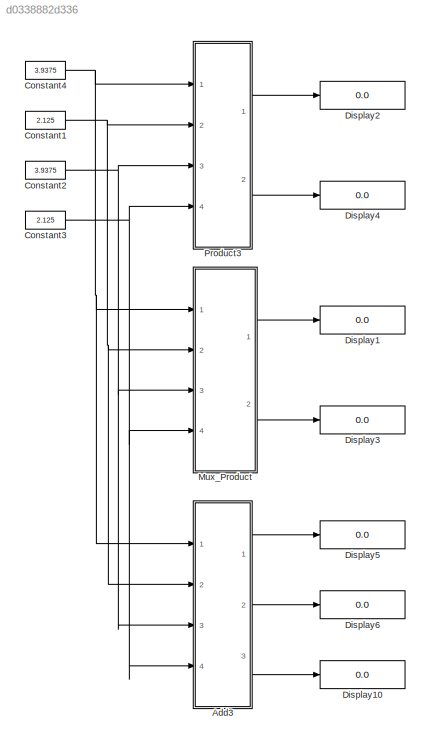
MODEL slx_d0338882d336
KIND model
CONFIG AbsTol = auto
CONFIG FixedStep = 1
CONFIG MaxStep = auto
CONFIG MinStep = auto
CONFIG RelTol = 1e-3
CONFIG SampleTimeConstraint = Unconstrained
CONFIG Solver = FixedStepDiscrete
CONFIG SolverMode = Auto
CONFIG SolverName = FixedStepDiscrete
CONFIG StartTime = 0.0
CONFIG StopTime = 0
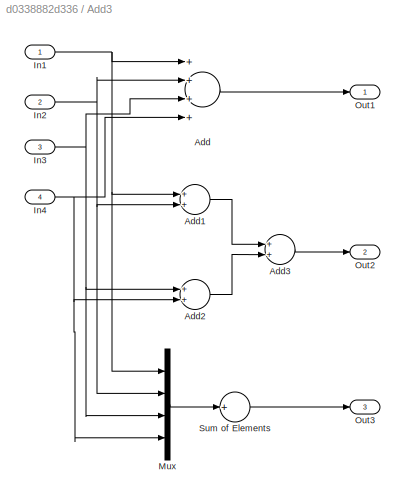
BLOCK [SubSystem] Add3
  Ports = [4, 3]
  RequestExecContextInheritance = off
  Variant = off
BLOCK [Sum] Add3/Add
  AttributesFormatString = %<AccumDataTypeStr>\n%<OutDataTypeStr>
  InputSameDT = off
  Inputs = ++++
  OutDataTypeStr = Inherit: Inherit via internal rule
  Ports = [4, 1]
  SaturateOnIntegerOverflow = off
BLOCK [Sum] Add3/Add1
  AttributesFormatString = %<AccumDataTypeStr>\n%<OutDataTypeStr>
  InputSameDT = off
  OutDataTypeStr = Inherit: Inherit via internal rule
  Ports = [2, 1]
  SaturateOnIntegerOverflow = off
BLOCK [Sum] Add3/Add2
  AttributesFormatString = %<AccumDataTypeStr>\n%<OutDataTypeStr>
  InputSameDT = off
  OutDataTypeStr = Inherit: Inherit via internal rule
  Ports = [2, 1]
  SaturateOnIntegerOverflow = off
BLOCK [Sum] Add3/Add3
  AttributesFormatString = %<AccumDataTypeStr>\n%<OutDataTypeStr>
  InputSameDT = off
  OutDataTypeStr = Inherit: Inherit via internal rule
  Ports = [2, 1]
  SaturateOnIntegerOverflow = off
BLOCK [Inport] Add3/In1
  IconDisplay = Port number
BLOCK [Inport] Add3/In2
  IconDisplay = Port number
  Port = 2
BLOCK [Inport] Add3/In3
  IconDisplay = Port number
  Port = 3
BLOCK [Inport] Add3/In4
  IconDisplay = Port number
  Port = 4
BLOCK [Mux] Add3/Mux
  DisplayOption = bar
  Ports = [4, 1]
BLOCK [Outport] Add3/Out1
  IconDisplay = Port number
BLOCK [Outport] Add3/Out2
  IconDisplay = Port number
  Port = 2
BLOCK [Outport] Add3/Out3
  IconDisplay = Port number
  Port = 3
BLOCK [Sum] Add3/Sum of Elements
  AttributesFormatString = %<AccumDataTypeStr>\n%<OutDataTypeStr>
  InputSameDT = off
  Inputs = +
  OutDataTypeStr = Inherit: Inherit via internal rule
  Ports = [1, 1]
  SaturateOnIntegerOverflow = off
BLOCK [Constant] Constant1
  AttributesFormatString = DataType = %<OutDataTypeStr>
  OutDataTypeStr = fixdt(1,8,4)
  SampleTime = -1
  Value = 2.125
BLOCK [Constant] Constant2
  AttributesFormatString = DataType = %<OutDataTypeStr>
  OutDataTypeStr = fixdt(1,8,4)
  SampleTime = -1
  Value = 3.9375
BLOCK [Constant] Constant3
  AttributesFormatString = DataType = %<OutDataTypeStr>
  OutDataTypeStr = fixdt(1,8,4)
  SampleTime = -1
  Value = 2.125
BLOCK [Constant] Constant4
  AttributesFormatString = DataType = %<OutDataTypeStr>
  OutDataTypeStr = fixdt(1,8,4)
  SampleTime = -1
  Value = 3.9375
BLOCK [Display] Display1
  AttributesFormatString = Format = %<Format>
  Decimation = 1
  Format = long
  Ports = [1]
BLOCK [Display] Display10
  AttributesFormatString = Format = %<Format>
  Decimation = 1
  Format = long
  Ports = [1]
BLOCK [Display] Display2
  AttributesFormatString = Format = %<Format>
  Decimation = 1
  Format = long
  Ports = [1]
BLOCK [Display] Display3
  AttributesFormatString = Format = %<Format>
  Decimation = 1
  Format = long
  Ports = [1]
BLOCK [Display] Display4
  AttributesFormatString = Format = %<Format>
  Decimation = 1
  Format = long
  Ports = [1]
BLOCK [Display] Display5
  AttributesFormatString = Format = %<Format>
  Decimation = 1
  Format = long
  Ports = [1]
BLOCK [Display] Display6
  AttributesFormatString = Format = %<Format>
  Decimation = 1
  Format = long
  Ports = [1]
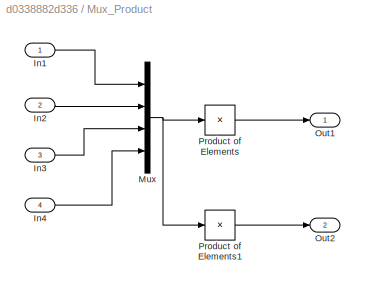
BLOCK [SubSystem] Mux_Product
  Ports = [4, 2]
  RequestExecContextInheritance = off
  Variant = off
BLOCK [Inport] Mux_Product/In1
  IconDisplay = Port number
BLOCK [Inport] Mux_Product/In2
  IconDisplay = Port number
  Port = 2
BLOCK [Inport] Mux_Product/In3
  IconDisplay = Port number
  Port = 3
BLOCK [Inport] Mux_Product/In4
  IconDisplay = Port number
  Port = 4
BLOCK [Mux] Mux_Product/Mux
  DisplayOption = bar
  Ports = [4, 1]
BLOCK [Outport] Mux_Product/Out1
  IconDisplay = Port number
BLOCK [Outport] Mux_Product/Out2
  IconDisplay = Port number
  Port = 2
BLOCK [Product] Mux_Product/Product of Elements
  AttributesFormatString = %<OutDataTypeStr>
  InputSameDT = off
  Inputs = *
  OutDataTypeStr = Inherit: Inherit via internal rule
  Ports = [1, 1]
  RndMeth = Nearest
  SaturateOnIntegerOverflow = off
BLOCK [Product] Mux_Product/Product of Elements1
  AttributesFormatString = %<OutDataTypeStr>
  InputSameDT = off
  Inputs = *
  OutDataTypeStr = fixdt(1,32,16)
  Ports = [1, 1]
  RndMeth = Nearest
  SaturateOnIntegerOverflow = off
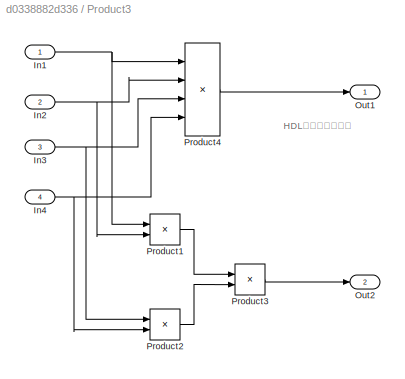
BLOCK [SubSystem] Product3
  Ports = [4, 2]
  RequestExecContextInheritance = off
  Variant = off
BLOCK [Inport] Product3/In1
  IconDisplay = Port number
BLOCK [Inport] Product3/In2
  IconDisplay = Port number
  Port = 2
BLOCK [Inport] Product3/In3
  IconDisplay = Port number
  Port = 3
BLOCK [Inport] Product3/In4
  IconDisplay = Port number
  Port = 4
BLOCK [Outport] Product3/Out1
  IconDisplay = Port number
BLOCK [Outport] Product3/Out2
  IconDisplay = Port number
  Port = 2
BLOCK [Product] Product3/Product1
  AttributesFormatString = %<OutDataTypeStr>
  InputSameDT = off
  OutDataTypeStr = Inherit: Inherit via internal rule
  Ports = [2, 1]
  RndMeth = Nearest
  SaturateOnIntegerOverflow = off
BLOCK [Product] Product3/Product2
  AttributesFormatString = %<OutDataTypeStr>
  InputSameDT = off
  OutDataTypeStr = Inherit: Inherit via internal rule
  Ports = [2, 1]
  RndMeth = Nearest
  SaturateOnIntegerOverflow = off
BLOCK [Product] Product3/Product3
  AttributesFormatString = %<OutDataTypeStr>
  InputSameDT = off
  OutDataTypeStr = Inherit: Inherit via internal rule
  Ports = [2, 1]
  RndMeth = Nearest
  SaturateOnIntegerOverflow = off
BLOCK [Product] Product3/Product4
  AttributesFormatString = %<OutDataTypeStr>
  InputSameDT = off
  Inputs = 4
  OutDataTypeStr = Inherit: Inherit via internal rule
  Ports = [4, 1]
  RndMeth = Nearest
  SaturateOnIntegerOverflow = off
ANNOTATION Product3: HDL生成出来ません
LINE Add3/Add1:1 -> Add3/Add3:1
LINE Add3/Add2:1 -> Add3/Add3:2
LINE Add3/Add3:1 -> Add3/Out2:1
LINE Add3/Add:1 -> Add3/Out1:1
NET Add3/In1:1 -> Add3/Add1:1, Add3/Add:1, Add3/Mux:1
NET Add3/In2:1 -> Add3/Add1:2, Add3/Add:2, Add3/Mux:2
NET Add3/In3:1 -> Add3/Add2:1, Add3/Add:3, Add3/Mux:3
NET Add3/In4:1 -> Add3/Add2:2, Add3/Add:4, Add3/Mux:4
LINE Add3/Mux:1 -> Add3/Sum of Elements:1
LINE Add3/Sum of Elements:1 -> Add3/Out3:1
LINE Add3:1 -> Display5:1
LINE Add3:2 -> Display6:1
LINE Add3:3 -> Display10:1
NET Constant1:1 -> Add3:2, Mux_Product:2, Product3:2
NET Constant2:1 -> Add3:3, Mux_Product:3, Product3:3
NET Constant3:1 -> Add3:4, Mux_Product:4, Product3:4
NET Constant4:1 -> Add3:1, Mux_Product:1, Product3:1
LINE Mux_Product/In1:1 -> Mux_Product/Mux:1
LINE Mux_Product/In2:1 -> Mux_Product/Mux:2
LINE Mux_Product/In3:1 -> Mux_Product/Mux:3
LINE Mux_Product/In4:1 -> Mux_Product/Mux:4
NET Mux_Product/Mux:1 -> Mux_Product/Product of Elements1:1, Mux_Product/Product of Elements:1
LINE Mux_Product/Product of Elements1:1 -> Mux_Product/Out2:1
LINE Mux_Product/Product of Elements:1 -> Mux_Product/Out1:1
LINE Mux_Product:1 -> Display1:1
LINE Mux_Product:2 -> Display3:1
NET Product3/In1:1 -> Product3/Product1:1, Product3/Product4:1
NET Product3/In2:1 -> Product3/Product1:2, Product3/Product4:2
NET Product3/In3:1 -> Product3/Product2:1, Product3/Product4:3
NET Product3/In4:1 -> Product3/Product2:2, Product3/Product4:4
LINE Product3/Product1:1 -> Product3/Product3:1
LINE Product3/Product2:1 -> Product3/Product3:2
LINE Product3/Product3:1 -> Product3/Out2:1
LINE Product3/Product4:1 -> Product3/Out1:1
LINE Product3:1 -> Display2:1
LINE Product3:2 -> Display4:1
note: NET lines group one-source signal fan-out (src -> all destinations, sorted); 1:1 wires keep LINE
